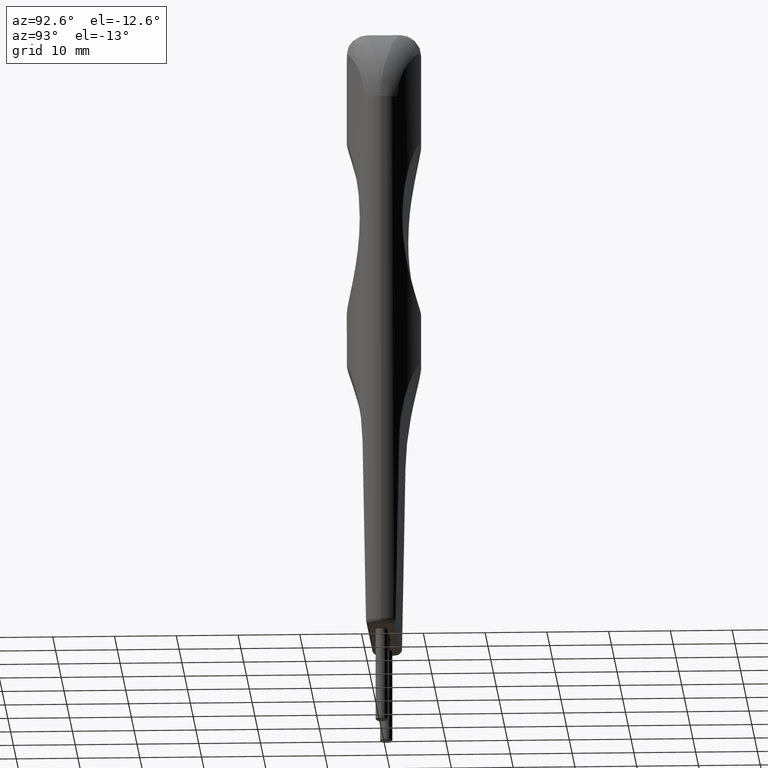
[diagram: clean part render]
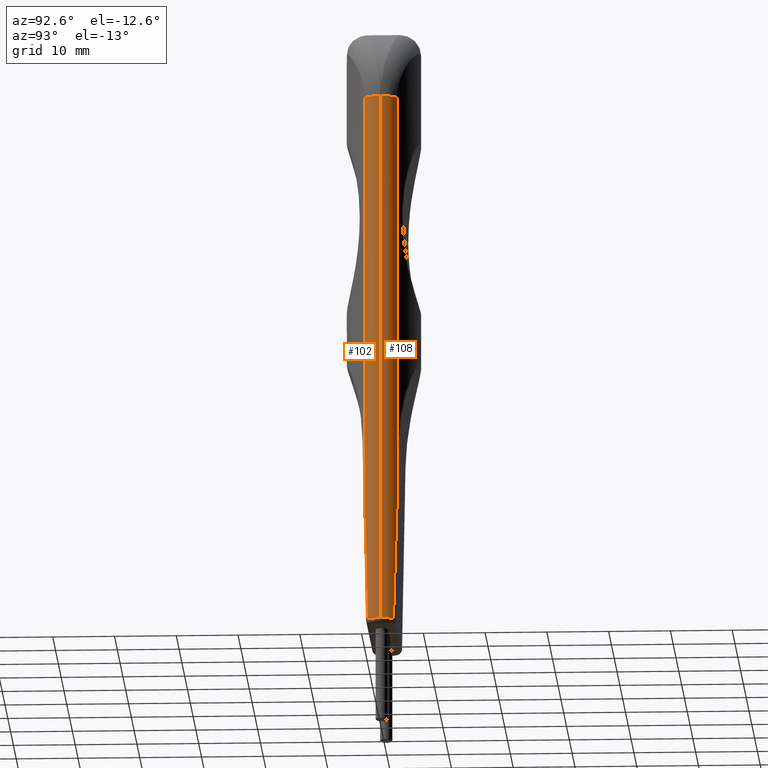
[diagram: same view with one multi-face feature highlighted, each face labeled with its STEP entity id]
A machine part, auxiliary view. The highlighted faces form ONE feature: a constant-radius fillet chain: 2 tangent blend faces with common blend radius 3.2 mm. The faces share edges in the B-rep.
Their STEP definitions:
[1] entity #102 (Cylinder):
#102=ADVANCED_FACE('NONE',(#238),#239,.T.);
#238=FACE_OUTER_BOUND('',#727,.T.);
#239=CYLINDRICAL_SURFACE('',#728,3.2);
#727=EDGE_LOOP('',(#2092,#2093,#2094,#2095,#2096));
#728=AXIS2_PLACEMENT_3D('',#2097,#2098,#2099);
#2092=ORIENTED_EDGE('',*,*,#2416,.T.);
#2093=ORIENTED_EDGE('',*,*,#2444,.T.);
#2094=ORIENTED_EDGE('',*,*,#2445,.T.);
#2095=ORIENTED_EDGE('',*,*,#2446,.F.);
#2096=ORIENTED_EDGE('',*,*,#2447,.T.);
#2097=CARTESIAN_POINT('',(9.3,0.0,-100.0));
#2098=DIRECTION('',(0.0,0.0,-1.0));
#2099=DIRECTION('',(1.0,0.0,0.0));
#2416=EDGE_CURVE('NONE',#2602,#2600,#2603,.T.);
#2444=EDGE_CURVE('NONE',#2600,#2646,#2647,.T.);
#2445=EDGE_CURVE('NONE',#2646,#2648,#2649,.T.);
#2446=EDGE_CURVE('NONE',#2650,#2648,#2651,.T.);
#2447=EDGE_CURVE('NONE',#2650,#2602,#2652,.T.);
#2600=VERTEX_POINT('NONE',#3129);
#2602=VERTEX_POINT('NONE',#3131);
#2603=CIRCLE('',#3132,3.2);
#2646=VERTEX_POINT('NONE',#3242);
#2647=LINE('',#3243,#3244);
#2648=VERTEX_POINT('NONE',#3245);
#2649=CIRCLE('',#3246,3.2);
#2650=VERTEX_POINT('NONE',#3247);
#2651=LINE('',#3248,#3249);
#2652=(B_SPLINE_CURVE(3,(#3251,#3252,#3253,#3254),.UNSPECIFIED.,.F.,.F.)B_SPLINE_CURVE_WITH_KNOTS((4,4),(0.586646606156942,0.869448575825274),.UNSPECIFIED.)RATIONAL_B_SPLINE_CURVE((1.0,0.993346351141324,0.993346351141324,1.0))BOUNDED_CURVE()REPRESENTATION_ITEM('')GEOMETRIC_REPRESENTATION_ITEM()CURVE());
#3129=CARTESIAN_POINT('',(12.5,0.0,-99.0));
#3131=CARTESIAN_POINT('',(11.7447143932565,-2.06479333963585,-99.0));
#3132=AXIS2_PLACEMENT_3D('',#4096,#4097,#4098);
#3242=CARTESIAN_POINT('',(12.5,0.0,-12.5));
#3243=CARTESIAN_POINT('',(12.5,0.0,-100.0));
#3244=VECTOR('',#4130,1000.0);
#3245=CARTESIAN_POINT('',(11.0714285714286,-2.66496544373966,-12.5));
#3246=AXIS2_PLACEMENT_3D('',#4131,#4132,#4133);
#3247=CARTESIAN_POINT('',(11.0714285714286,-2.66496544373966,-78.097604201815));
#3248=CARTESIAN_POINT('',(11.0714285714286,-2.66496544373966,-100.0));
#3249=VECTOR('',#4134,1000.0);
#3251=CARTESIAN_POINT('',(11.0714285714286,-2.66496544373966,-78.097604201815));
#3252=CARTESIAN_POINT('',(11.3234885292951,-2.49741872671686,-83.9328100868444));
#3253=CARTESIAN_POINT('',(11.5494204079576,-2.29602133113097,-90.9469449432883));
#3254=CARTESIAN_POINT('',(11.7447143932565,-2.06479333963585,-99.0));
#4096=CARTESIAN_POINT('',(9.3,0.0,-99.0));
#4097=DIRECTION('',(0.0,0.0,1.0));
#4098=DIRECTION('',(1.0,0.0,0.0));
#4130=DIRECTION('',(0.0,0.0,1.0));
#4131=CARTESIAN_POINT('',(9.3,0.0,-12.5));
#4132=DIRECTION('',(0.0,0.0,-1.0));
#4133=DIRECTION('',(1.0,0.0,0.0));
#4134=DIRECTION('',(0.0,0.0,1.0));
[2] entity #108 (Cylinder):
#108=ADVANCED_FACE('NONE',(#250),#251,.T.);
#250=FACE_OUTER_BOUND('',#739,.T.);
#251=CYLINDRICAL_SURFACE('',#740,3.2);
#739=EDGE_LOOP('',(#2127,#2128,#2129,#2130,#2131));
#740=AXIS2_PLACEMENT_3D('',#2132,#2133,#2134);
#2127=ORIENTED_EDGE('',*,*,#2444,.F.);
#2128=ORIENTED_EDGE('',*,*,#2463,.T.);
#2129=ORIENTED_EDGE('',*,*,#2464,.T.);
#2130=ORIENTED_EDGE('',*,*,#2456,.T.);
#2131=ORIENTED_EDGE('',*,*,#2465,.T.);
#2132=CARTESIAN_POINT('',(9.3,0.0,-100.0));
#2133=DIRECTION('',(0.0,0.0,-1.0));
#2134=DIRECTION('',(1.0,0.0,0.0));
#2444=EDGE_CURVE('NONE',#2600,#2646,#2647,.T.);
#2456=EDGE_CURVE('NONE',#2663,#2664,#2665,.T.);
#2463=EDGE_CURVE('NONE',#2600,#2674,#2675,.T.);
#2464=EDGE_CURVE('NONE',#2674,#2663,#2676,.T.);
#2465=EDGE_CURVE('NONE',#2664,#2646,#2677,.T.);
#2600=VERTEX_POINT('NONE',#3129);
#2646=VERTEX_POINT('NONE',#3242);
#2647=LINE('',#3243,#3244);
#2663=VERTEX_POINT('NONE',#3273);
#2664=VERTEX_POINT('NONE',#3274);
#2665=LINE('',#3275,#3276);
#2674=VERTEX_POINT('NONE',#3450);
#2675=CIRCLE('',#3451,3.2);
#2676=(B_SPLINE_CURVE(3,(#3453,#3454,#3455,#3456),.UNSPECIFIED.,.F.,.F.)B_SPLINE_CURVE_WITH_KNOTS((4,4),(5.41373673135433,5.69653870102264),.UNSPECIFIED.)RATIONAL_B_SPLINE_CURVE((1.0,0.993346351141324,0.993346351141324,1.0))BOUNDED_CURVE()REPRESENTATION_ITEM('')GEOMETRIC_REPRESENTATION_ITEM()CURVE());
#2677=CIRCLE('',#3463,3.2);
#3129=CARTESIAN_POINT('',(12.5,0.0,-99.0));
#3242=CARTESIAN_POINT('',(12.5,0.0,-12.5));
#3243=CARTESIAN_POINT('',(12.5,0.0,-100.0));
#3244=VECTOR('',#4130,1000.0);
#3273=CARTESIAN_POINT('',(11.0714285714286,2.66496544373966,-78.0976042018171));
#3274=CARTESIAN_POINT('',(11.0714285714286,2.66496544373966,-12.5));
#3275=CARTESIAN_POINT('',(11.0714285714286,2.66496544373966,-100.0));
#3276=VECTOR('',#4149,1000.0);
#3450=CARTESIAN_POINT('',(11.7447143932564,2.0647933396359,-99.0));
#3451=AXIS2_PLACEMENT_3D('',#4150,#4151,#4152);
#3453=CARTESIAN_POINT('',(11.7447143932564,2.0647933396359,-99.0));
#3454=CARTESIAN_POINT('',(11.5494204079576,2.29602133113101,-90.9469449432892));
#3455=CARTESIAN_POINT('',(11.3234885292951,2.49741872671687,-83.9328100868461));
#3456=CARTESIAN_POINT('',(11.0714285714286,2.66496544373966,-78.0976042018171));
#3463=AXIS2_PLACEMENT_3D('',#4153,#4154,#4155);
#4130=DIRECTION('',(0.0,0.0,1.0));
#4149=DIRECTION('',(0.0,0.0,1.0));
#4150=CARTESIAN_POINT('',(9.3,0.0,-99.0));
#4151=DIRECTION('',(0.0,0.0,1.0));
#4152=DIRECTION('',(1.0,0.0,0.0));
#4153=CARTESIAN_POINT('',(9.3,0.0,-12.5));
#4154=DIRECTION('',(0.0,0.0,-1.0));
#4155=DIRECTION('',(1.0,8.88178419700125E-016,0.0));